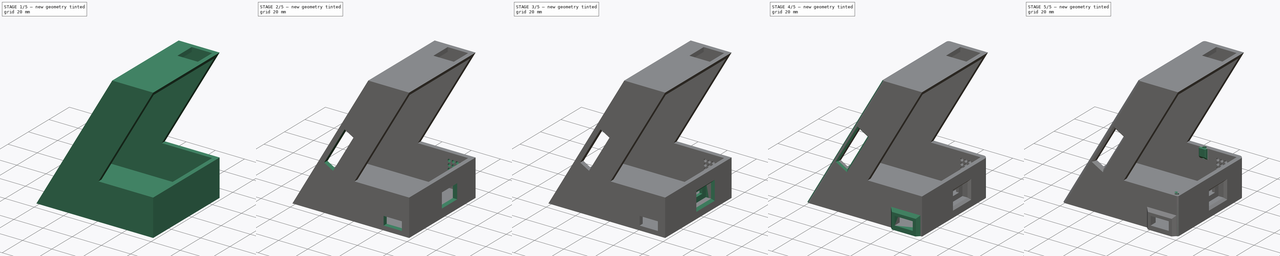
[diagram: build sequence overview — one tinted view per stage of 5, left to right]
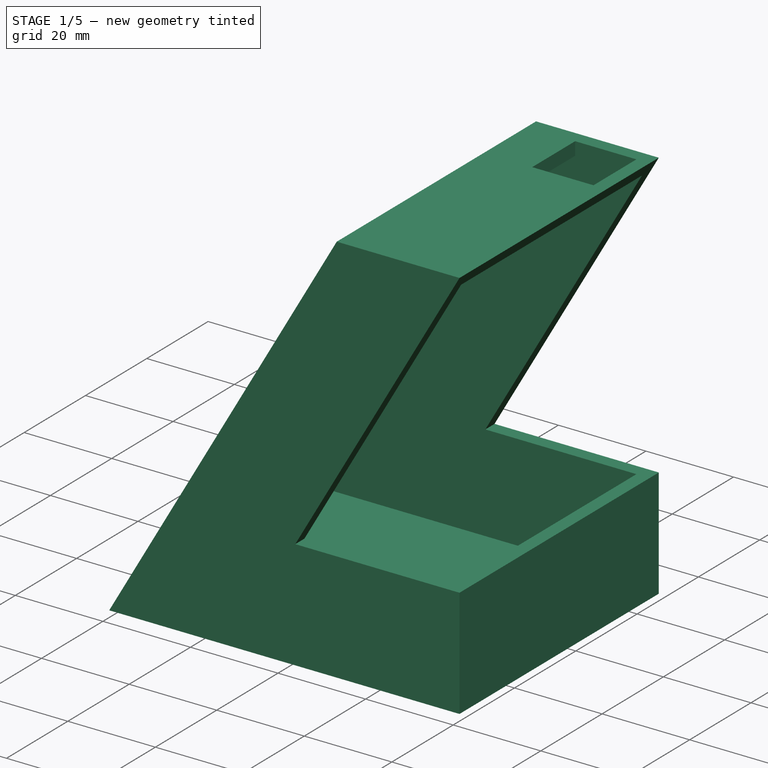
[diagram: stage 1 of 5 — iso view after this stage's code; geometry added in this stage tinted green]
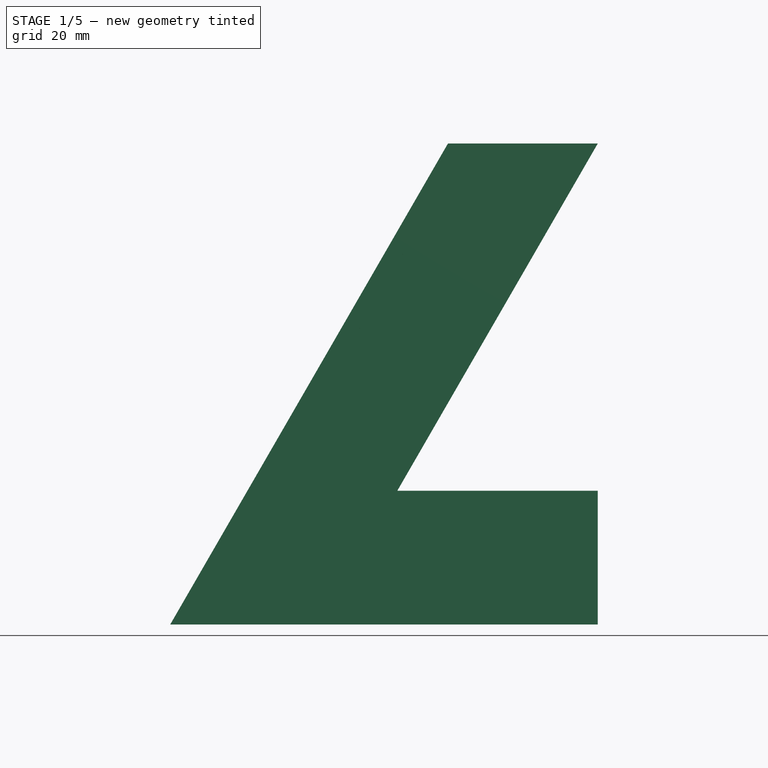
[diagram: stage 1 of 5 — front view after this stage's code; geometry added in this stage tinted green]
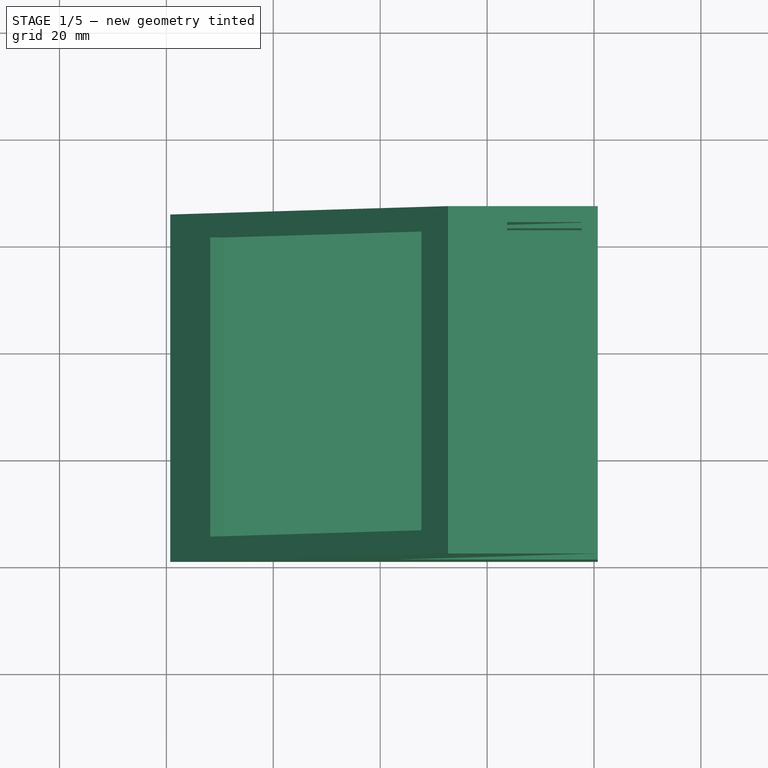
[diagram: stage 1 of 5 — top view after this stage's code; geometry added in this stage tinted green]
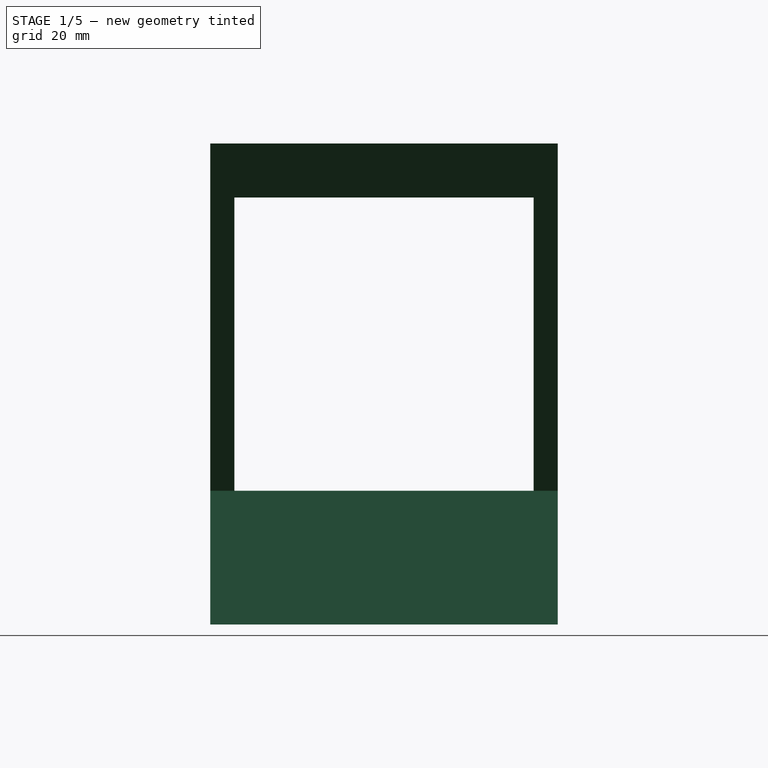
[diagram: stage 1 of 5 — right view after this stage's code; geometry added in this stage tinted green]
FCSTD DOCUMENT  (FreeCAD 1.0R39109 (Git))
Label: Photoframe
License: All rights reserved
LicenseURL: https://en.wikipedia.org/wiki/All_rights_reserved
objects: Sketcher::SketchObject×14, PartDesign::Pocket×9, PartDesign::Chamfer×6, PartDesign::Pad×5, PartDesign::Fillet×4, PartDesign::LinearPattern×2, PartDesign::Thickness×1, PartDesign::MultiTransform×1, PartDesign::Body×1, App::Part×1
note: 110 computed .brp shape members not serialized (recipe doc carries the construction recipe); baked Part::Feature solids carry a one-line shape summary decoded from their .brp

FEATURE [Sketcher::SketchObject] Sketch
  ArcFitTolerance = 1e-06
  AttachmentSupport = -> [XY_Plane]
  FullyConstrained = false
  MakeInternals = false
  MapMode = 5
  sketch-geometry (4):
    g0: LineSegment StartX=-19.2875 StartY=26.0553 StartZ=0 EndX=-19.2875 EndY=-38.9447 EndZ=0
    g1: LineSegment StartX=-19.2875 StartY=-38.9447 StartZ=0 EndX=60.7125 EndY=-38.9447 EndZ=0
    g2: LineSegment StartX=60.7125 StartY=-38.9447 StartZ=0 EndX=60.7125 EndY=26.0553 EndZ=0
    g3: LineSegment StartX=60.7125 StartY=26.0553 StartZ=0 EndX=-19.2875 EndY=26.0553 EndZ=0
  constraints (10):
    c: Coincident(g0,g1)
    c: Coincident(g1,g2)
    c: Coincident(g2,g3)
    c: Coincident(g3,g0)
    c: Vertical(g0)
    c: Vertical(g2)
    c: Horizontal(g1)
    c: Horizontal(g3)
    c: Distance(g0,g2) = 80
    c: Distance(g1,g3) = 65
FEATURE [PartDesign::Pad] Pad
  Direction = (0,0,1)
  Length = 90
  Length2 = 10
  Profile = -> Sketch
  ReferenceAxis = -> Sketch [N_Axis]
  Refine = true
  Suppressed = false
  Type = 0
FEATURE [Sketcher::SketchObject] Sketch001
  ArcFitTolerance = 1e-06
  AttachmentSupport = -> [Pad]
  ExternalGeometry = -> [Pad]
  FullyConstrained = false
  MakeInternals = false
  MapMode = 5
  Placement = pos=(0,-38.9447,0) rot=(1,0,0;1.5708rad)
  sketch-geometry (6):
    g0: LineSegment StartX=-19.2875 StartY=0 StartZ=0 EndX=32.6822 EndY=90 EndZ=0
    g1: LineSegment StartX=60.7125 StartY=90 StartZ=0 EndX=23.1962 EndY=25.0198 EndZ=0
    g2: LineSegment StartX=32.6822 StartY=90 StartZ=0 EndX=-19.2875 EndY=90 EndZ=0
    g3: LineSegment StartX=-19.2875 StartY=0 StartZ=0 EndX=-19.2875 EndY=90 EndZ=0
    g4: LineSegment StartX=23.1962 StartY=25.0198 StartZ=0 EndX=60.7125 EndY=25.0198 EndZ=0
    g5: LineSegment StartX=60.7125 StartY=90 StartZ=0 EndX=60.7125 EndY=25.0198 EndZ=0
  constraints (13):
    c: Coincident(g0,g-6)
    c: PointOnObject(g0,g-3)
    c: Angle(g-1,g1) = -2.0944
    c: Coincident(g2,g0)
    c: Coincident(g2,g-5)
    c: Coincident(g3,g0)
    c: Coincident(g3,g2)
    c: Horizontal(g4)
    c: Coincident(g4,g1)
    c: PointOnObject(g4,g-4)
    c: Coincident(g5,g1)
    c: Coincident(g5,g4)
    c: Vertical(g5)
FEATURE [PartDesign::Pocket] Pocket
  BaseFeature = -> Pad
  Direction = (0,1,-2e-16)
  Length = 65
  Length2 = 5
  Profile = -> Sketch001
  ReferenceAxis = -> Sketch001 [N_Axis]
  Refine = true
  Suppressed = false
  Type = 0
FEATURE [PartDesign::Thickness] Thickness
  Base = -> Pocket [Face8,Face7]
  BaseFeature = -> Pocket
  Intersection = false
  Join = 0
  Mode = 0
  Refine = true
  Reversed = true
  SupportTransform = false
  Suppressed = false
  Value = 3
FEATURE [Sketcher::SketchObject] Sketch002
  ArcFitTolerance = 1e-06
  ExternalGeometry = -> [Pocket,Thickness]
  FullyConstrained = true
  MakeInternals = false
  MapMode = 5
  Placement = pos=(-14.4645,1.9e-15,8.3524) rot=(0.447192,-0.447192,-0.774621;1.82345rad)
  sketch-geometry (4):
    g0: LineSegment StartX=-21.5553 StartY=84.3551 StartZ=0 EndX=-21.5553 EndY=5.3551 EndZ=0
    g1: LineSegment StartX=-21.5553 StartY=5.3551 StartZ=0 EndX=34.4447 EndY=5.3551 EndZ=0
    g2: LineSegment StartX=34.4447 StartY=5.3551 StartZ=0 EndX=34.4447 EndY=84.3551 EndZ=0
    g3: LineSegment StartX=34.4447 StartY=84.3551 StartZ=0 EndX=-21.5553 EndY=84.3551 EndZ=0
  constraints (12):
    c: Coincident(g0,g1)
    c: Coincident(g1,g2)
    c: Coincident(g2,g3)
    c: Coincident(g3,g0)
    c: Vertical(g0)
    c: Vertical(g2)
    c: Horizontal(g1)
    c: Horizontal(g3)
    c: Distance(g0,g2) = 56
    c: Distance(g1,g3) = 79
    c: Distance(g-4,g0) = 4.5
    c: Distance(g-3,g1) = 15
FEATURE [PartDesign::Pocket] Pocket001
  BaseFeature = -> Thickness
  Direction = (0.865991,1e-16,-0.500059)
  Length = 5
  Length2 = 5
  Profile = -> Sketch002
  ReferenceAxis = -> Sketch002 [N_Axis]
  Refine = true
  Suppressed = false
  Type = 0
FEATURE [Sketcher::SketchObject] Sketch003
  ArcFitTolerance = 1e-06
  AttachmentSupport = -> [Pocket001]
  ExternalGeometry = -> [Pocket001]
  FullyConstrained = true
  MakeInternals = false
  MapMode = 5
  Placement = pos=(0,0,90) rot=(0,0,1;0rad)
  sketch-geometry (4):
    g0: LineSegment StartX=43.7125 StartY=23.0553 StartZ=0 EndX=43.7125 EndY=9.05531 EndZ=0
    g1: LineSegment StartX=43.7125 StartY=9.05531 StartZ=0 EndX=57.7125 EndY=9.05531 EndZ=0
    g2: LineSegment StartX=57.7125 StartY=9.05531 StartZ=0 EndX=57.7125 EndY=23.0553 EndZ=0
    g3: LineSegment StartX=57.7125 StartY=23.0553 StartZ=0 EndX=43.7125 EndY=23.0553 EndZ=0
  constraints (12):
    c: Coincident(g0,g1)
    c: Coincident(g1,g2)
    c: Coincident(g2,g3)
    c: Coincident(g3,g0)
    c: Vertical(g0)
    c: Vertical(g2)
    c: Horizontal(g1)
    c: Horizontal(g3)
    c: Distance(g0,g2) = 14
    c: Distance(g1,g3) = 14
    c: Distance(g-4,g2) = 3
    c: Distance(g-3,g3) = 3
FEATURE [PartDesign::Pocket] Pocket002
  BaseFeature = -> Pocket001
  Direction = (0,0,-1)
  Length = 5
  Length2 = 5
  Profile = -> Sketch003
  ReferenceAxis = -> Sketch003 [N_Axis]
  Refine = true
  Suppressed = false
  Type = 0
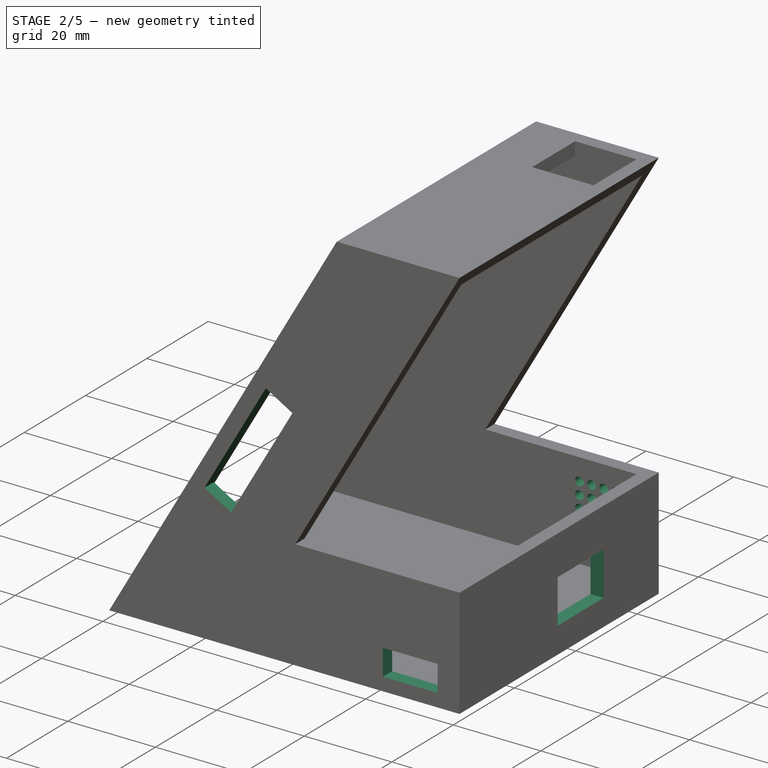
[diagram: stage 2 of 5 — iso view after this stage's code; geometry added in this stage tinted green]
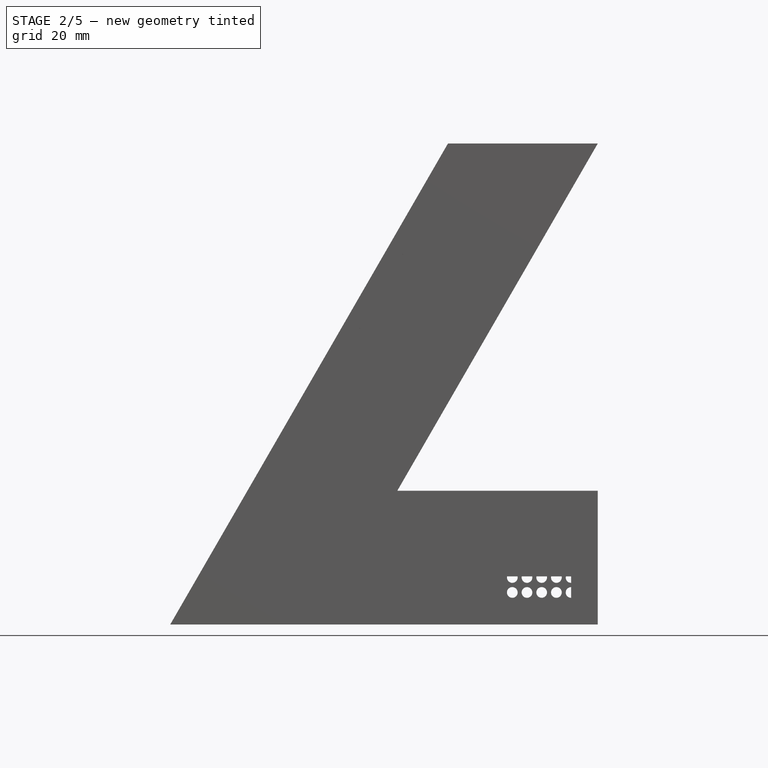
[diagram: stage 2 of 5 — front view after this stage's code; geometry added in this stage tinted green]
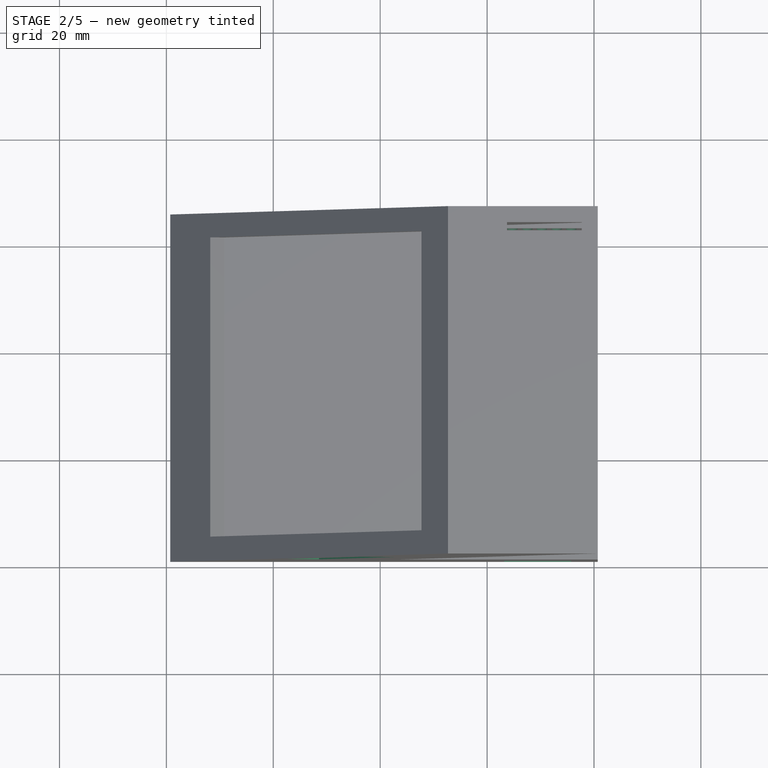
[diagram: stage 2 of 5 — top view after this stage's code; geometry added in this stage tinted green]
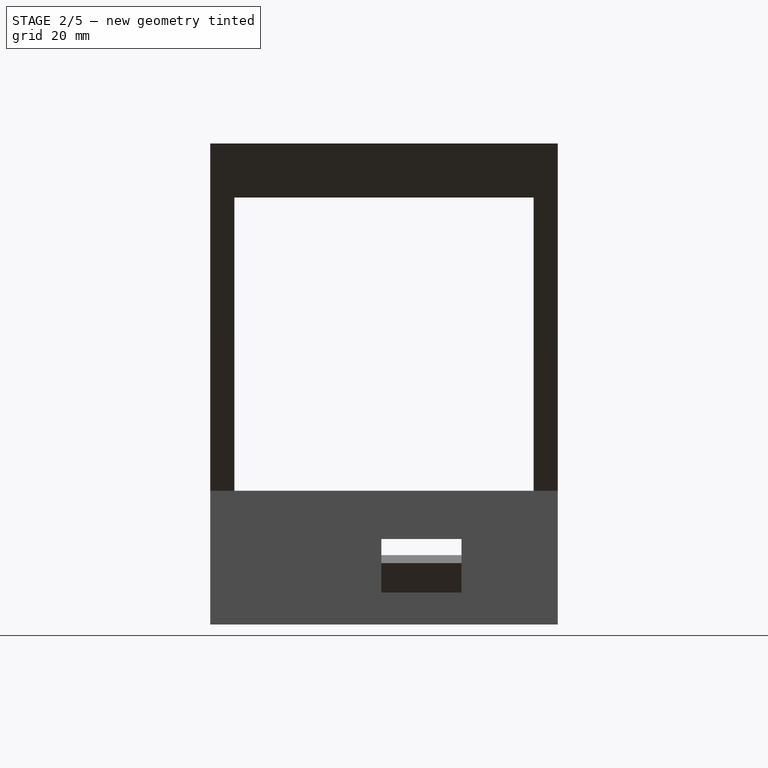
[diagram: stage 2 of 5 — right view after this stage's code; geometry added in this stage tinted green]
FEATURE [Sketcher::SketchObject] Sketch004
  ArcFitTolerance = 1e-06
  AttachmentSupport = -> [Pocket002]
  ExternalGeometry = -> [Pocket002]
  FullyConstrained = true
  MakeInternals = false
  MapMode = 5
  Placement = pos=(0,-38.9447,0) rot=(1,0,0;1.5708rad)
  sketch-geometry (4):
    g0: LineSegment StartX=16.4838 StartY=55.3937 StartZ=0 EndX=2.48382 EndY=31.145 EndZ=0
    g1: LineSegment StartX=2.48382 StartY=31.145 StartZ=0 EndX=8.546 EndY=27.645 EndZ=0
    g2: LineSegment StartX=16.4838 StartY=55.3937 StartZ=0 EndX=22.546 EndY=51.8937 EndZ=0
    g3: LineSegment StartX=8.546 StartY=27.645 StartZ=0 EndX=22.546 EndY=51.8937 EndZ=0
  constraints (12):
    c: Angle(g-1,g0) = -2.0944
    c: Distance(g0,g0) = 28
    c: Distance(g-5,g0) = 21
    c: Distance(g1) = 7
    c: Angle(g-1,g1) = -0.523599
    c: Coincident(g1,g0)
    c: Distance(g2) = 7
    c: Angle(g-1,g2) = -0.523599
    c: Coincident(g2,g0)
    c: Coincident(g3,g1)
    c: Coincident(g3,g2)
    c: Distance(g-4,g0) = 38
FEATURE [PartDesign::Pocket] Pocket003
  BaseFeature = -> Pocket002
  Direction = (0,1,-2e-16)
  Length = 5
  Length2 = 5
  Profile = -> Sketch004
  ReferenceAxis = -> Sketch004 [N_Axis]
  Refine = true
  Suppressed = false
  Type = 0
FEATURE [Sketcher::SketchObject] Sketch005
  ArcFitTolerance = 1e-06
  AttachmentSupport = -> [Pocket002]
  ExternalGeometry = -> [Pocket002]
  FullyConstrained = true
  MakeInternals = false
  MapMode = 5
  Placement = pos=(0,26.0553,0) rot=(0,0.707107,0.707107;3.14159rad)
  sketch-geometry (5):
    g0: LineSegment [constr] StartX=-57.7125 StartY=22 StartZ=0 EndX=-57.7125 EndY=6 EndZ=0
    g1: LineSegment [constr] StartX=-57.7125 StartY=6 StartZ=0 EndX=-44.7125 EndY=6 EndZ=0
    g2: LineSegment [constr] StartX=-44.7125 StartY=6 StartZ=0 EndX=-44.7125 EndY=22 EndZ=0
    g3: LineSegment [constr] StartX=-44.7125 StartY=22 StartZ=0 EndX=-57.7125 EndY=22 EndZ=0
    g4: Circle CenterX=-55.7125 CenterY=20 CenterZ=0 NormalX=0 NormalY=0 NormalZ=1 AngleXU=0 Radius=1
  constraints (15):
    c: Coincident(g0,g1)
    c: Coincident(g1,g2)
    c: Coincident(g2,g3)
    c: Coincident(g3,g0)
    c: Vertical(g0)
    c: Vertical(g2)
    c: Horizontal(g1)
    c: Horizontal(g3)
    c: Distance(g0,g2) = 13
    c: Distance(g1,g3) = 16
    c: Distance(g-3,g0) = 3
    c: Distance(g-4,g1) = 6
    c: Diameter(g4) = 2
    c: Distance(g4,g3) = 2
    c: Distance(g4,g0) = 2
FEATURE [PartDesign::Pocket] Pocket004
  BaseFeature = -> Pocket003
  Direction = (0,-1,2e-16)
  Length = 5
  Length2 = 5
  Profile = -> Sketch005
  ReferenceAxis = -> Sketch005 [N_Axis]
  Refine = true
  Suppressed = false
  Type = 0
FEATURE [PartDesign::LinearPattern] LinearPattern
  Direction = -> Sketch005 [H_Axis]
  Length = 11
  Mode = 0
  Occurrences = 5
  Offset = 2.75
  Refine = true
  Suppressed = false
  TransformMode = 0
FEATURE [PartDesign::LinearPattern] LinearPattern001
  Direction = -> Sketch005 [V_Axis]
  Length = 14
  Mode = 0
  Occurrences = 6
  Offset = 2.8
  Refine = true
  Reversed = true
  Suppressed = false
  TransformMode = 0
FEATURE [PartDesign::MultiTransform] MultiTransform
  BaseFeature = -> Pocket004
  Originals = -> [Pocket004]
  Refine = true
  Suppressed = false
  TransformMode = 0
  Transformations = -> [LinearPattern,LinearPattern001]
FEATURE [Sketcher::SketchObject] Sketch006
  ArcFitTolerance = 1e-06
  AttachmentSupport = -> [MultiTransform]
  ExternalGeometry = -> [MultiTransform]
  FullyConstrained = true
  MakeInternals = false
  MapMode = 5
  Placement = pos=(60.7125,0,0) rot=(0.57735,0.57735,0.57735;2.0944rad)
  sketch-geometry (4):
    g0: LineSegment StartX=-6.94469 StartY=16 StartZ=0 EndX=-6.94469 EndY=6 EndZ=0
    g1: LineSegment StartX=-6.94469 StartY=6 StartZ=0 EndX=8.05531 EndY=6 EndZ=0
    g2: LineSegment StartX=8.05531 StartY=6 StartZ=0 EndX=8.05531 EndY=16 EndZ=0
    g3: LineSegment StartX=8.05531 StartY=16 StartZ=0 EndX=-6.94469 EndY=16 EndZ=0
  constraints (12):
    c: Coincident(g0,g1)
    c: Coincident(g1,g2)
    c: Coincident(g2,g3)
    c: Coincident(g3,g0)
    c: Vertical(g0)
    c: Vertical(g2)
    c: Horizontal(g1)
    c: Horizontal(g3)
    c: Distance(g-3,g2) = 18
    c: Distance(g-4,g0) = 32
    c: Distance(g-6,g1) = 6
    c: Distance(g1,g3) = 10
FEATURE [PartDesign::Pocket] Pocket005
  BaseFeature = -> MultiTransform
  Direction = (-1,0,0)
  Length = 5
  Length2 = 5
  Profile = -> Sketch006
  ReferenceAxis = -> Sketch006 [N_Axis]
  Refine = true
  Suppressed = false
  Type = 0
FEATURE [Sketcher::SketchObject] Sketch007
  ArcFitTolerance = 1e-06
  AttachmentSupport = -> [Pocket005]
  ExternalGeometry = -> [Pocket005]
  FullyConstrained = true
  MakeInternals = false
  MapMode = 5
  Placement = pos=(0,-38.9447,0) rot=(1,0,0;1.5708rad)
  sketch-geometry (4):
    g0: LineSegment StartX=43.2125 StartY=9 StartZ=0 EndX=43.2125 EndY=3 EndZ=0
    g1: LineSegment StartX=43.2125 StartY=3 StartZ=0 EndX=55.7125 EndY=3 EndZ=0
    g2: LineSegment StartX=55.7125 StartY=3 StartZ=0 EndX=55.7125 EndY=9 EndZ=0
    g3: LineSegment StartX=55.7125 StartY=9 StartZ=0 EndX=43.2125 EndY=9 EndZ=0
  constraints (12):
    c: Coincident(g0,g1)
    c: Coincident(g1,g2)
    c: Coincident(g2,g3)
    c: Coincident(g3,g0)
    c: Vertical(g0)
    c: Vertical(g2)
    c: Horizontal(g1)
    c: Horizontal(g3)
    c: Distance(g0,g2) = 12.5
    c: Distance(g1,g3) = 6
    c: Distance(g-3,g1) = 3
    c: Distance(g-4,g2) = 5
FEATURE [PartDesign::Pocket] Pocket006
  BaseFeature = -> Pocket005
  Direction = (0,1,-2e-16)
  Length = 5
  Length2 = 5
  Profile = -> Sketch007
  ReferenceAxis = -> Sketch007 [N_Axis]
  Refine = true
  Suppressed = false
  Type = 0
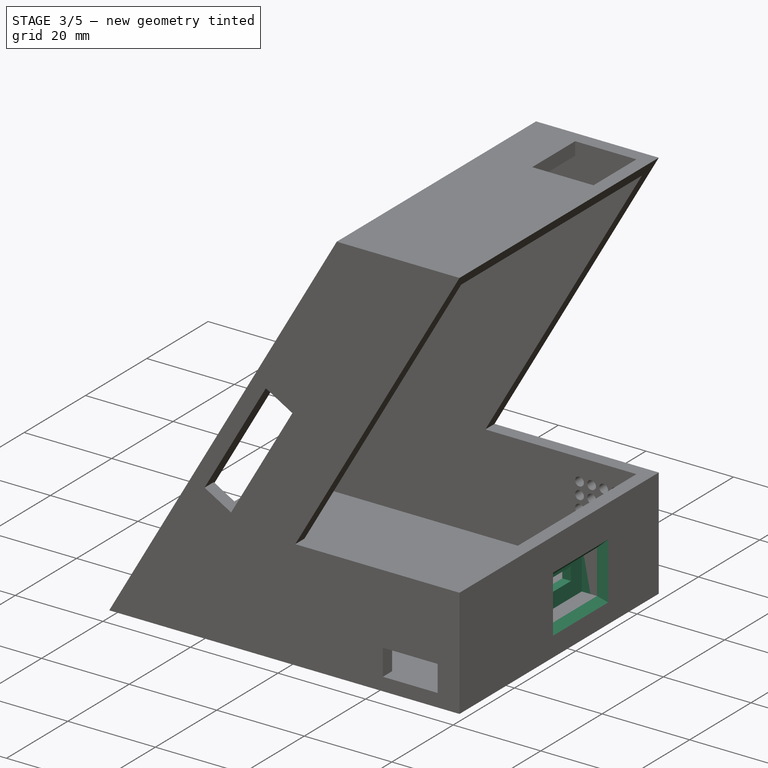
[diagram: stage 3 of 5 — iso view after this stage's code; geometry added in this stage tinted green]
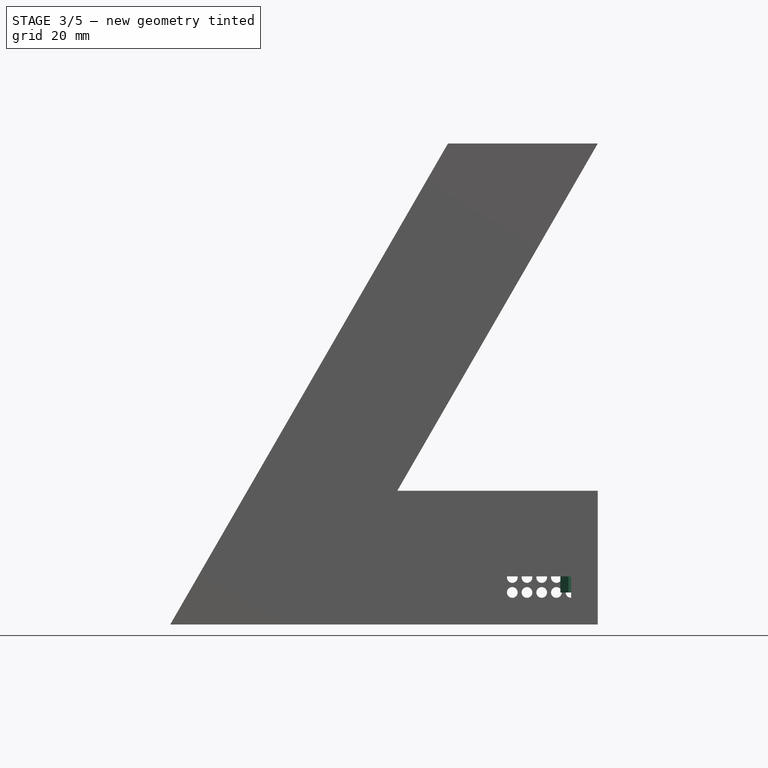
[diagram: stage 3 of 5 — front view after this stage's code; geometry added in this stage tinted green]
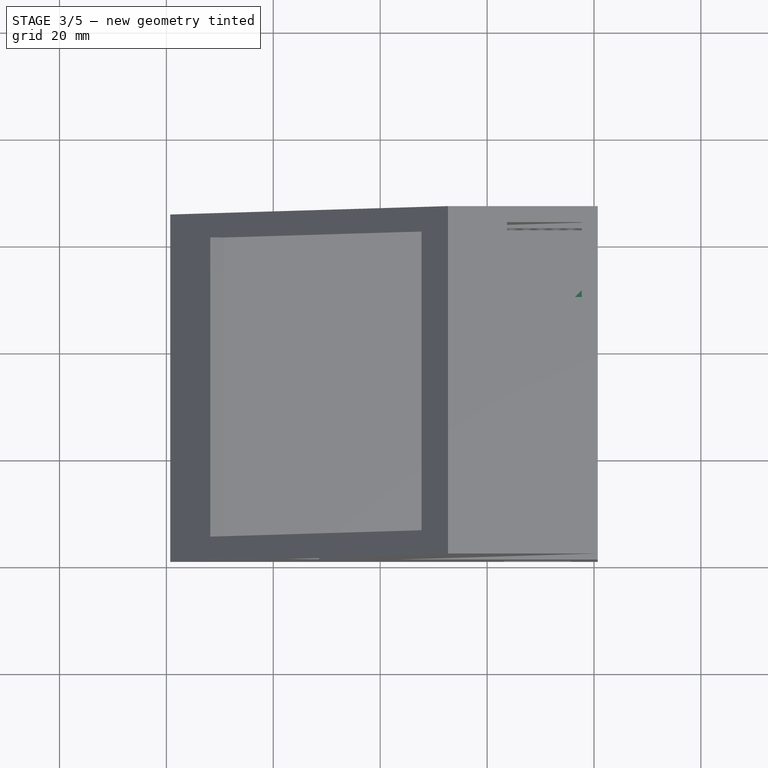
[diagram: stage 3 of 5 — top view after this stage's code; geometry added in this stage tinted green]
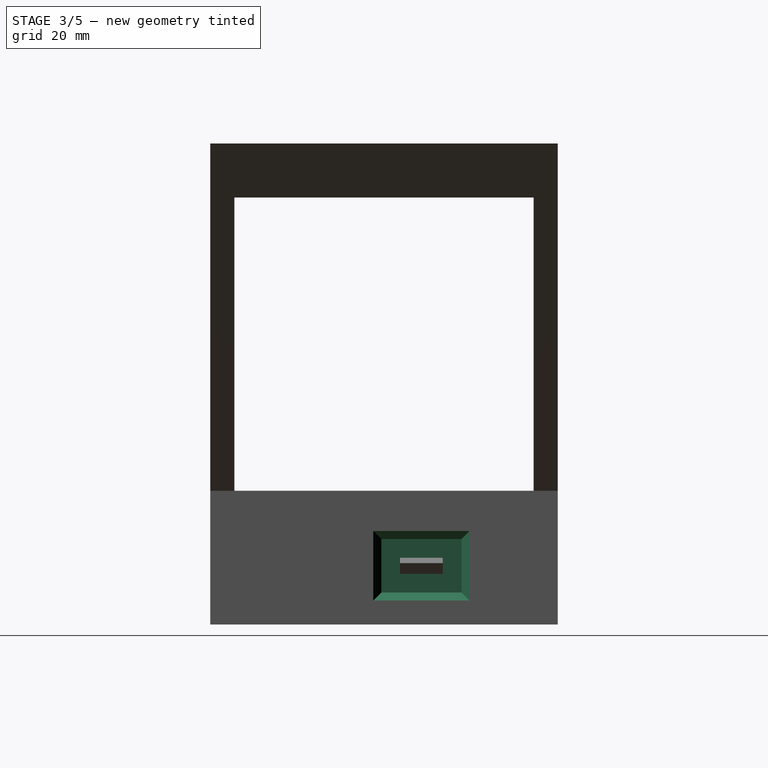
[diagram: stage 3 of 5 — right view after this stage's code; geometry added in this stage tinted green]
FEATURE [Sketcher::SketchObject] Sketch008
  ArcFitTolerance = 1e-06
  AttachmentSupport = -> [Pocket006]
  ExternalGeometry = -> [Pocket006]
  FullyConstrained = false
  MakeInternals = false
  MapMode = 5
  Placement = pos=(57.7125,0,0) rot=(0.57735,-0.57735,-0.57735;2.0944rad)
  sketch-geometry (8):
    g0: LineSegment StartX=-10.0553 StartY=18 StartZ=0 EndX=-10.0553 EndY=6 EndZ=0
    g1: LineSegment StartX=8.94469 StartY=6 StartZ=0 EndX=8.94469 EndY=18 EndZ=0
    g2: LineSegment StartX=8.94469 StartY=18 StartZ=0 EndX=-10.0553 EndY=18 EndZ=0
    g3: LineSegment StartX=-10.0553 StartY=6 StartZ=0 EndX=-8.05531 EndY=6 EndZ=0
    g4: LineSegment StartX=-8.05531 StartY=6 StartZ=0 EndX=-8.05531 EndY=16 EndZ=0
    g5: LineSegment StartX=-8.05531 StartY=16 StartZ=0 EndX=6.94469 EndY=16 EndZ=0
    g6: LineSegment StartX=6.94469 StartY=16 StartZ=0 EndX=6.94469 EndY=6 EndZ=0
    g7: LineSegment StartX=6.94469 StartY=6 StartZ=0 EndX=8.94469 EndY=6 EndZ=0
  constraints (20):
    c: Coincident(g1,g2)
    c: Coincident(g2,g0)
    c: Vertical(g0)
    c: Vertical(g1)
    c: Horizontal(g2)
    c: Distance(g0,g-5) = 2
    c: Distance(g2,g-7) = 2
    c: Distance(g1,g-6) = 2
    c: PointOnObject(g3,g0)
    c: Coincident(g3,g-5)
    c: Horizontal(g3)
    c: Coincident(g4,g3)
    c: Coincident(g4,g-7)
    c: Coincident(g5,g4)
    c: Coincident(g5,g-7)
    c: Coincident(g6,g5)
    c: Coincident(g6,g-6)
    c: Coincident(g7,g6)
    c: Coincident(g7,g1)
    c: Horizontal(g7)
FEATURE [PartDesign::Pad] Pad001
  BaseFeature = -> Pocket006
  Direction = (-1,0,0)
  Length = 4
  Length2 = 10
  Profile = -> Sketch008
  ReferenceAxis = -> Sketch008 [N_Axis]
  Refine = true
  Suppressed = false
  Type = 0
FEATURE [Sketcher::SketchObject] Sketch009
  ArcFitTolerance = 1e-06
  AttachmentSupport = -> [Pad001]
  ExternalGeometry = -> [Pad001]
  FullyConstrained = true
  MakeInternals = false
  MapMode = 5
  Placement = pos=(53.7125,0,0) rot=(0.57735,-0.57735,-0.57735;2.0944rad)
  sketch-geometry (4):
    g0: LineSegment StartX=-8.05531 StartY=16 StartZ=0 EndX=-8.05531 EndY=6 EndZ=0
    g1: LineSegment StartX=-8.05531 StartY=6 StartZ=0 EndX=6.94469 EndY=6 EndZ=0
    g2: LineSegment StartX=6.94469 StartY=6 StartZ=0 EndX=6.94469 EndY=16 EndZ=0
    g3: LineSegment StartX=6.94469 StartY=16 StartZ=0 EndX=-8.05531 EndY=16 EndZ=0
  constraints (10):
    c: Coincident(g0,g1)
    c: Coincident(g1,g2)
    c: Coincident(g2,g3)
    c: Coincident(g3,g0)
    c: Vertical(g0)
    c: Vertical(g2)
    c: Horizontal(g1)
    c: Horizontal(g3)
    c: Coincident(g0,g-4)
    c: Coincident(g1,g-5)
FEATURE [PartDesign::Pad] Pad002
  BaseFeature = -> Pad001
  Direction = (-1,0,0)
  Length = 2
  Length2 = 10
  Profile = -> Sketch009
  ReferenceAxis = -> Sketch009 [N_Axis]
  Refine = true
  Reversed = true
  Suppressed = false
  Type = 0
FEATURE [Sketcher::SketchObject] Sketch010
  ArcFitTolerance = 1e-06
  AttachmentSupport = -> [Pad002]
  ExternalGeometry = -> [Pad002]
  FullyConstrained = true
  MakeInternals = false
  MapMode = 5
  Placement = pos=(55.7125,0,0) rot=(0.57735,0.57735,0.57735;2.0944rad)
  sketch-geometry (4):
    g0: LineSegment StartX=-3.44469 StartY=12.5 StartZ=0 EndX=-3.44469 EndY=9.5 EndZ=0
    g1: LineSegment StartX=-3.44469 StartY=9.5 StartZ=0 EndX=4.55531 EndY=9.5 EndZ=0
    g2: LineSegment StartX=4.55531 StartY=9.5 StartZ=0 EndX=4.55531 EndY=12.5 EndZ=0
    g3: LineSegment StartX=4.55531 StartY=12.5 StartZ=0 EndX=-3.44469 EndY=12.5 EndZ=0
  constraints (12):
    c: Coincident(g0,g1)
    c: Coincident(g1,g2)
    c: Coincident(g2,g3)
    c: Coincident(g3,g0)
    c: Vertical(g0)
    c: Vertical(g2)
    c: Horizontal(g1)
    c: Horizontal(g3)
    c: Distance(g0,g2) = 8
    c: Distance(g1,g3) = 3
    c: Distance(g-6,g1) = 3.5
    c: Distance(g-4,g2) = 3.5
FEATURE [PartDesign::Pocket] Pocket007
  BaseFeature = -> Pad002
  Direction = (-1,0,0)
  Length = 5
  Length2 = 5
  Profile = -> Sketch010
  ReferenceAxis = -> Sketch010 [N_Axis]
  Refine = true
  Suppressed = false
  Type = 0
FEATURE [PartDesign::Chamfer] Chamfer
  Angle = 45
  Base = -> Pocket007 [Edge26,Edge29,Edge27,Edge28]
  BaseFeature = -> Pocket007
  ChamferType = 0
  FlipDirection = false
  Refine = true
  Size = 1.5
  Size2 = 1
  SupportTransform = false
  Suppressed = false
  UseAllEdges = false
FEATURE [PartDesign::Chamfer] Chamfer001
  Angle = 45
  Base = -> Chamfer [Edge180,Edge179,Edge181]
  BaseFeature = -> Chamfer
  ChamferType = 0
  FlipDirection = false
  Refine = true
  Size = 1.5
  Size2 = 1
  SupportTransform = false
  Suppressed = false
  UseAllEdges = false
FEATURE [PartDesign::Chamfer] Chamfer002
  Angle = 45
  Base = -> Chamfer001 [Edge91,Edge93,Edge92]
  BaseFeature = -> Chamfer001
  ChamferType = 0
  FlipDirection = false
  Refine = true
  Size = 1.5
  Size2 = 1
  SupportTransform = false
  Suppressed = false
  UseAllEdges = false
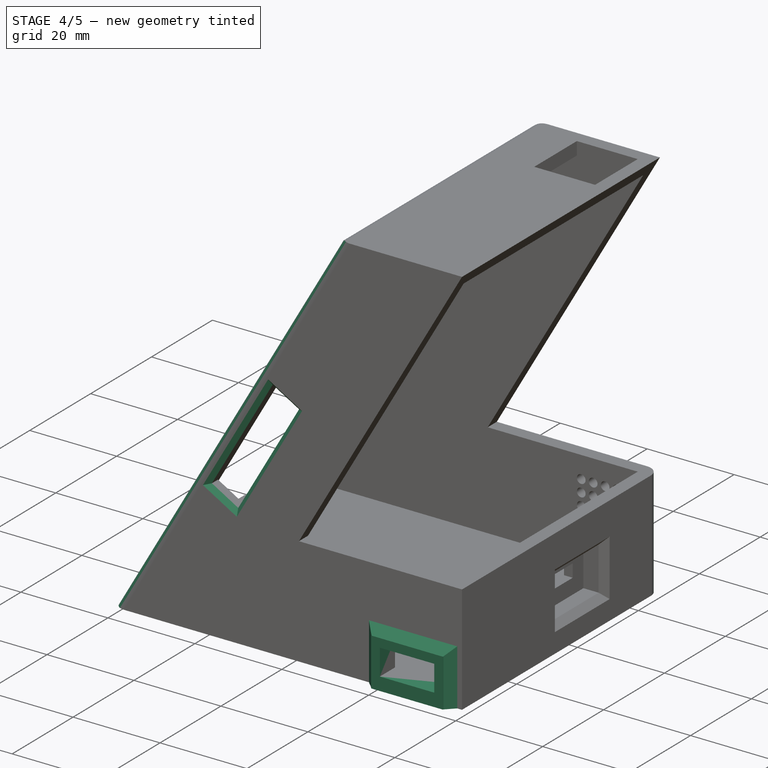
[diagram: stage 4 of 5 — iso view after this stage's code; geometry added in this stage tinted green]
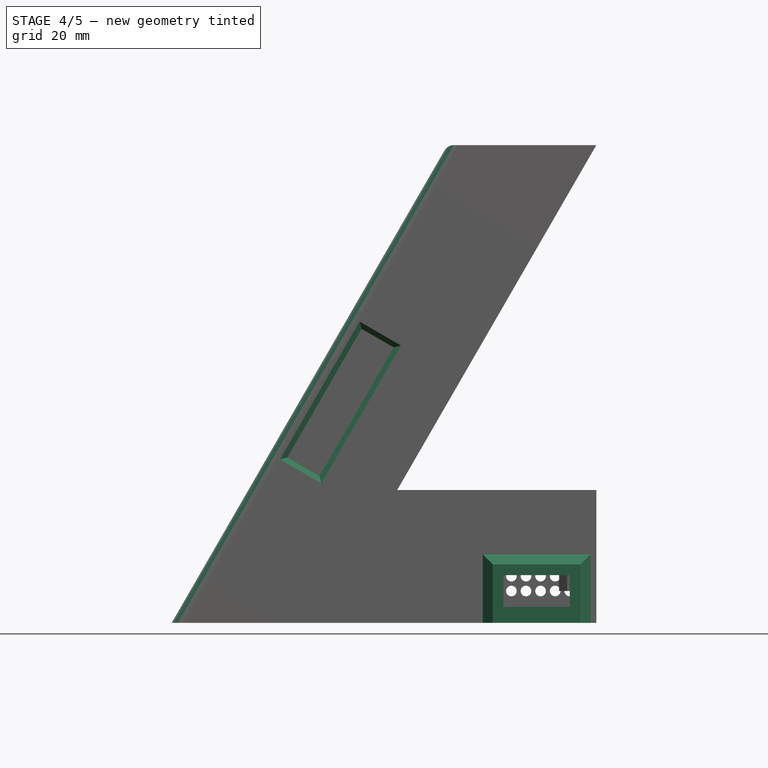
[diagram: stage 4 of 5 — front view after this stage's code; geometry added in this stage tinted green]
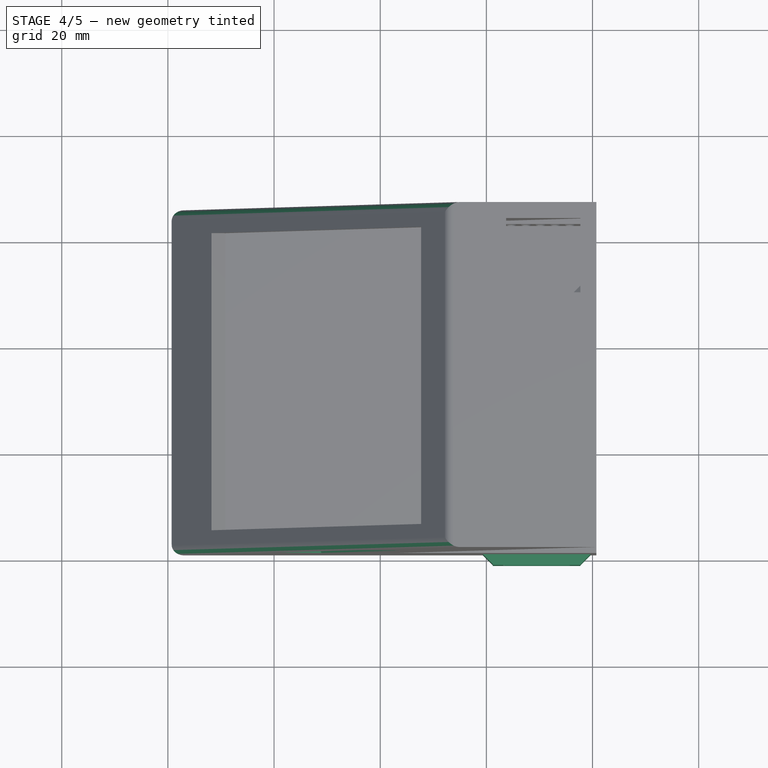
[diagram: stage 4 of 5 — top view after this stage's code; geometry added in this stage tinted green]
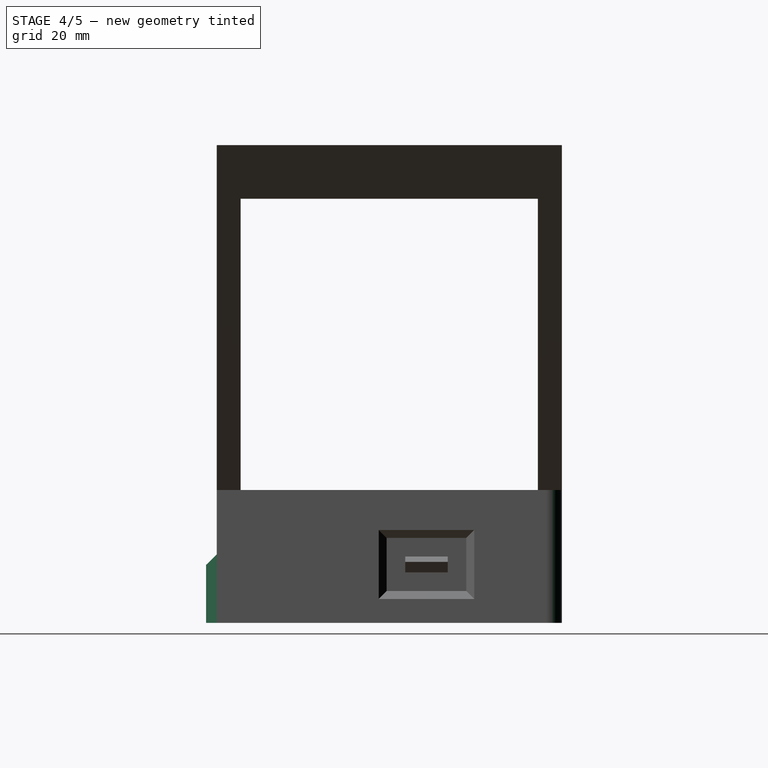
[diagram: stage 4 of 5 — right view after this stage's code; geometry added in this stage tinted green]
FEATURE [Sketcher::SketchObject] Sketch011
  ArcFitTolerance = 1e-06
  AttachmentSupport = -> [Chamfer002]
  ExternalGeometry = -> [Chamfer002]
  FullyConstrained = true
  MakeInternals = false
  MapMode = 5
  Placement = pos=(0,-38.9447,0) rot=(1,0,0;1.5708rad)
  sketch-geometry (8):
    g0: LineSegment StartX=41.2125 StartY=11 StartZ=0 EndX=41.2125 EndY=0 EndZ=0
    g1: LineSegment StartX=41.2125 StartY=0 StartZ=0 EndX=57.7125 EndY=0 EndZ=0
    g2: LineSegment StartX=57.7125 StartY=0 StartZ=0 EndX=57.7125 EndY=11 EndZ=0
    g3: LineSegment StartX=57.7125 StartY=11 StartZ=0 EndX=41.2125 EndY=11 EndZ=0
    g4: LineSegment StartX=43.2125 StartY=9 StartZ=0 EndX=43.2125 EndY=3 EndZ=0
    g5: LineSegment StartX=43.2125 StartY=3 StartZ=0 EndX=55.7125 EndY=3 EndZ=0
    g6: LineSegment StartX=55.7125 StartY=3 StartZ=0 EndX=55.7125 EndY=9 EndZ=0
    g7: LineSegment StartX=55.7125 StartY=9 StartZ=0 EndX=43.2125 EndY=9 EndZ=0
  constraints (22):
    c: Coincident(g0,g1)
    c: Coincident(g1,g2)
    c: Coincident(g2,g3)
    c: Coincident(g3,g0)
    c: Vertical(g0)
    c: Vertical(g2)
    c: Horizontal(g1)
    c: Horizontal(g3)
    c: Distance(g2,g-5) = 2
    c: Distance(g0,g-4) = 2
    c: Distance(g-3,g3) = 2
    c: Distance(g1,g-6) = 3
    c: Coincident(g4,g5)
    c: Coincident(g5,g6)
    c: Coincident(g6,g7)
    c: Coincident(g7,g4)
    c: Vertical(g4)
    c: Vertical(g6)
    c: Horizontal(g5)
    c: Horizontal(g7)
    c: Coincident(g4,g-4)
    c: Coincident(g5,g-6)
FEATURE [PartDesign::Pad] Pad003
  BaseFeature = -> Chamfer002
  Direction = (0,-1,2e-16)
  Length = 2
  Length2 = 10
  Profile = -> Sketch011
  ReferenceAxis = -> Sketch011 [N_Axis]
  Refine = true
  Suppressed = false
  Type = 0
FEATURE [PartDesign::Chamfer] Chamfer003
  Angle = 45
  Base = -> Pad003 [Edge167,Edge166,Edge165]
  BaseFeature = -> Pad003
  ChamferType = 0
  FlipDirection = false
  Refine = true
  Size = 1.9
  Size2 = 1
  SupportTransform = false
  Suppressed = false
  UseAllEdges = false
FEATURE [PartDesign::Chamfer] Chamfer004
  Angle = 45
  Base = -> Chamfer003 [Edge11,Edge12,Edge13,Edge14]
  BaseFeature = -> Chamfer003
  ChamferType = 0
  FlipDirection = false
  Refine = true
  Size = 1
  Size2 = 1
  SupportTransform = false
  Suppressed = false
  UseAllEdges = false
FEATURE [PartDesign::Fillet] Fillet
  Base = -> Chamfer004 [Edge33,Edge34,Edge7]
  BaseFeature = -> Chamfer004
  Radius = 2
  Refine = true
  SupportTransform = false
  Suppressed = false
  UseAllEdges = false
FEATURE [PartDesign::Fillet] Fillet001
  Base = -> Fillet [Edge56]
  BaseFeature = -> Fillet
  Radius = 3
  Refine = true
  SupportTransform = false
  Suppressed = false
  UseAllEdges = false
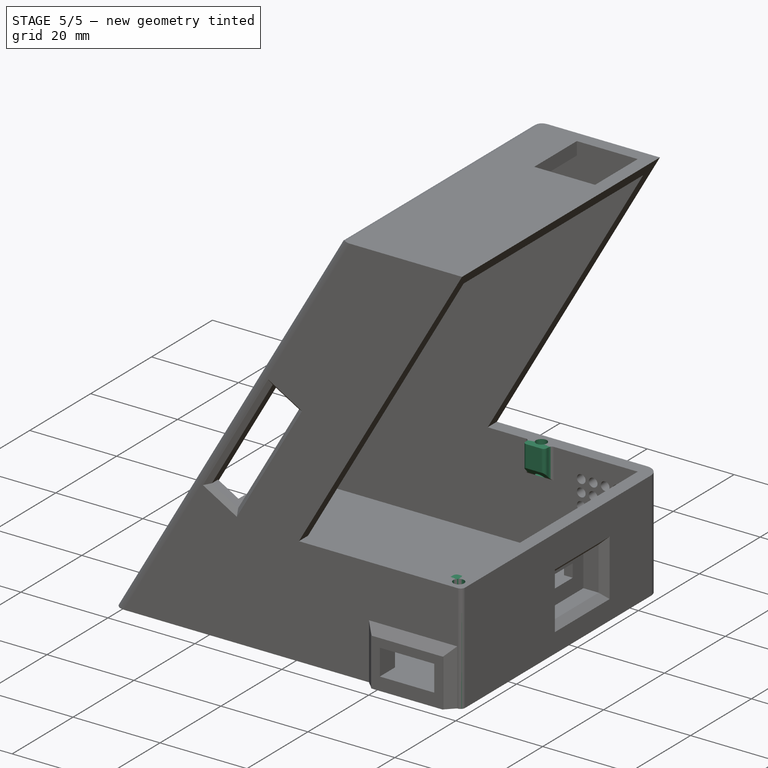
[diagram: stage 5 of 5 — iso view after this stage's code; geometry added in this stage tinted green]
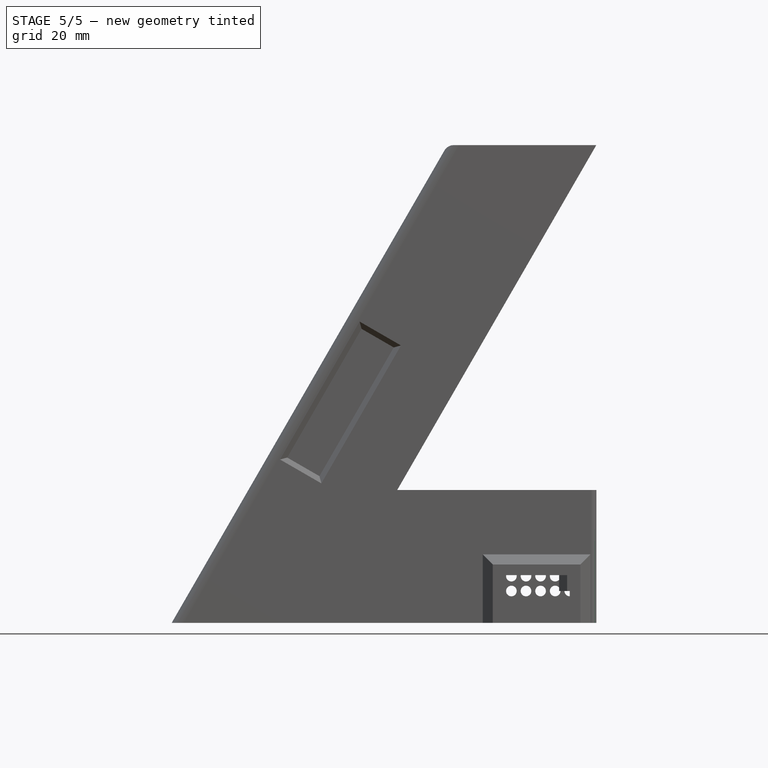
[diagram: stage 5 of 5 — front view after this stage's code; geometry added in this stage tinted green]
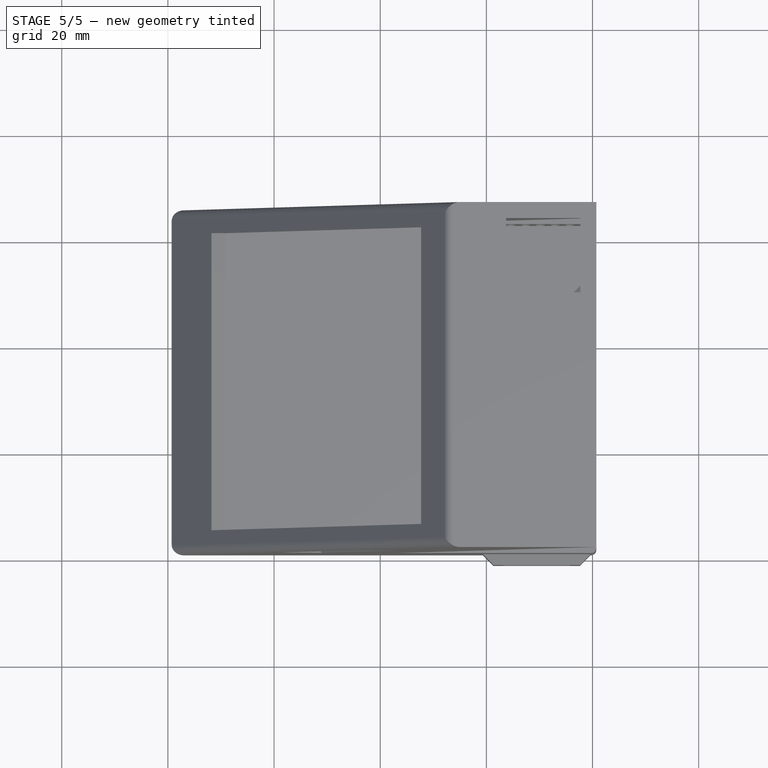
[diagram: stage 5 of 5 — top view after this stage's code; geometry added in this stage tinted green]
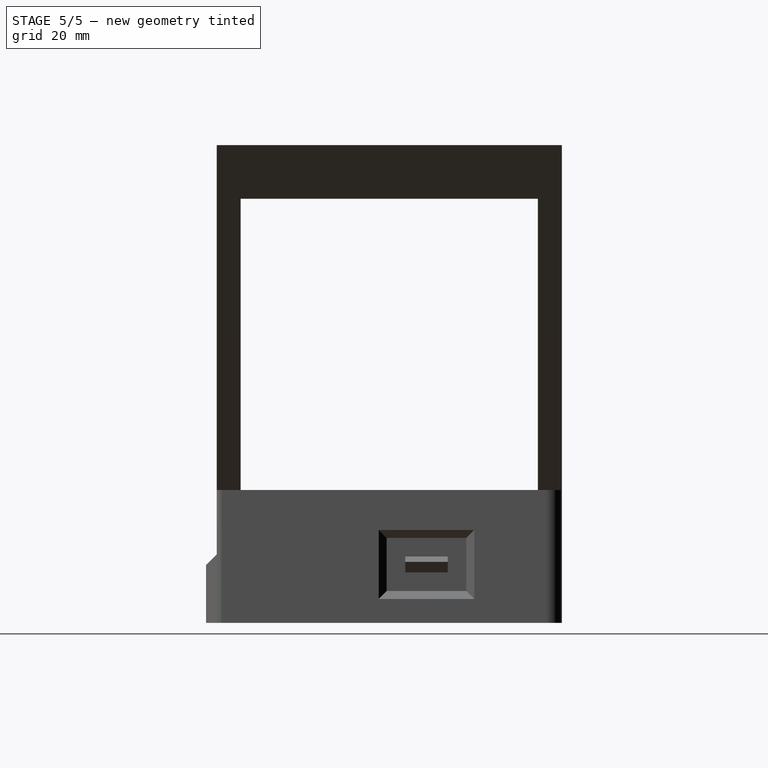
[diagram: stage 5 of 5 — right view after this stage's code; geometry added in this stage tinted green]
FEATURE [PartDesign::Fillet] Fillet002
  Base = -> Fillet001 [Edge54]
  BaseFeature = -> Fillet001
  Radius = 1
  Refine = true
  SupportTransform = false
  Suppressed = false
  UseAllEdges = false
FEATURE [Sketcher::SketchObject] Sketch012
  ArcFitTolerance = 1e-06
  FullyConstrained = true
  MakeInternals = false
  MapMode = 5
  Placement = pos=(0,5.5e-15,25.0198) rot=(0,0,1;0rad)
  sketch-geometry (8):
    g0: LineSegment StartX=57.7125 StartY=-35.9447 StartZ=0 EndX=57.7125 EndY=-33.9447 EndZ=0
    g1: LineSegment StartX=57.7125 StartY=-33.9447 StartZ=0 EndX=55.7125 EndY=-33.9447 EndZ=0
    g2: LineSegment StartX=55.7125 StartY=-33.9447 StartZ=0 EndX=55.7125 EndY=-35.9447 EndZ=0
    g3: LineSegment StartX=55.7125 StartY=-35.9447 StartZ=0 EndX=57.7125 EndY=-35.9447 EndZ=0
    g4: LineSegment StartX=32.7125 StartY=23.0553 StartZ=0 EndX=32.7125 EndY=21.0553 EndZ=0
    g5: LineSegment StartX=32.7125 StartY=21.0553 StartZ=0 EndX=37.7125 EndY=21.0553 EndZ=0
    g6: LineSegment StartX=37.7125 StartY=21.0553 StartZ=0 EndX=37.7125 EndY=23.0553 EndZ=0
    g7: LineSegment StartX=37.7125 StartY=23.0553 StartZ=0 EndX=32.7125 EndY=23.0553 EndZ=0
  constraints (23):
    c: Coincident(g0,g1)
    c: Coincident(g1,g2)
    c: Coincident(g2,g3)
    c: Coincident(g3,g0)
    c: Vertical(g0)
    c: Vertical(g2)
    c: Horizontal(g1)
    c: Horizontal(g3)
    c: Distance(g0,g2) = 2
    c: Distance(g1,g3) = 2
    c: Coincident(g0,g-5)
    c: Coincident(g4,g5)
    c: Coincident(g5,g6)
    c: Coincident(g6,g7)
    c: Coincident(g7,g4)
    c: Vertical(g4)
    c: Vertical(g6)
    c: Horizontal(g5)
    c: Horizontal(g7)
    c: Distance(g4,g6) = 5
    c: Distance(g5,g7) = 2
    c: PointOnObject(g4,g-3)
    c: Distance(g5,g-4) = 20
FEATURE [PartDesign::Pad] Pad004
  BaseFeature = -> Fillet002
  Direction = (0,0,1)
  Length = 5
  Length2 = 10
  Profile = -> Sketch012
  ReferenceAxis = -> Sketch012 [N_Axis]
  Refine = true
  Reversed = true
  Suppressed = false
  Type = 0
FEATURE [PartDesign::Chamfer] Chamfer005
  Angle = 45
  Base = -> Pad004 [Edge217,Edge206]
  BaseFeature = -> Pad004
  ChamferType = 0
  FlipDirection = false
  Refine = true
  Size = 1.99
  Size2 = 1
  SupportTransform = false
  Suppressed = false
  UseAllEdges = false
FEATURE [Sketcher::SketchObject] Sketch013
  ArcFitTolerance = 1e-06
  AttachmentSupport = -> [Chamfer005]
  ExternalGeometry = -> [Chamfer005]
  FullyConstrained = true
  MakeInternals = false
  MapMode = 5
  Placement = pos=(0,0,25.0198) rot=(0,0,1;0rad)
  sketch-geometry (2):
    g0: Circle CenterX=58.2125 CenterY=-36.4447 CenterZ=0 NormalX=0 NormalY=0 NormalZ=1 AngleXU=0 Radius=1.25
    g1: Circle CenterX=35.2125 CenterY=23.5553 CenterZ=0 NormalX=0 NormalY=0 NormalZ=1 AngleXU=0 Radius=1.25
  constraints (6):
    c: Diameter(g0) = 2.5
    c: Diameter(g1) = 2.5
    c: Distance(g0,g-4) = 2.5
    c: Distance(g1,g-6) = 2.5
    c: Distance(g1,g-7) = 2.5
    c: Distance(g0,g-3) = 2.5
FEATURE [PartDesign::Pocket] Pocket008
  BaseFeature = -> Chamfer005
  Direction = (0,0,-1)
  Length = 7
  Length2 = 5
  Profile = -> Sketch013
  ReferenceAxis = -> Sketch013 [N_Axis]
  Refine = true
  Suppressed = false
  Type = 0
FEATURE [PartDesign::Fillet] Fillet003
  Base = -> Pocket008 [Edge211,Edge92,Edge103,Edge210,Edge96,Edge97,Edge42,Edge26,Edge6,Edge5]
  BaseFeature = -> Pocket008
  Radius = 0.75
  Refine = true
  SupportTransform = false
  Suppressed = false
  UseAllEdges = false
FEATURE [PartDesign::Body] Body
  AllowCompound = false
  Group = -> [Sketch,Pad,Sketch001,Pocket,Sketch002,Thickness,Pocket001,Sketch003,Pocket002,Sketch004,Pocket003,Sketch005,Pocket004,MultiTransform,LinearPattern,LinearPattern001,Sketch006,Pocket005,Sketch007,Pocket006,Sketch008,Pad001,Sketch009,Pad002,Sketch010,Pocket007,Chamfer,Chamfer001,Chamfer002,Sketch011,Pad003,Chamfer003,Chamfer004,Fillet,Fillet001,Fillet002,Sketch012,Pad004,Chamfer005,Sketch013,+2 more]
  Origin = -> Origin
  Tip = -> Fillet003
FEATURE [App::Part] Part
  Group = -> [Body]
  Origin = -> Origin001
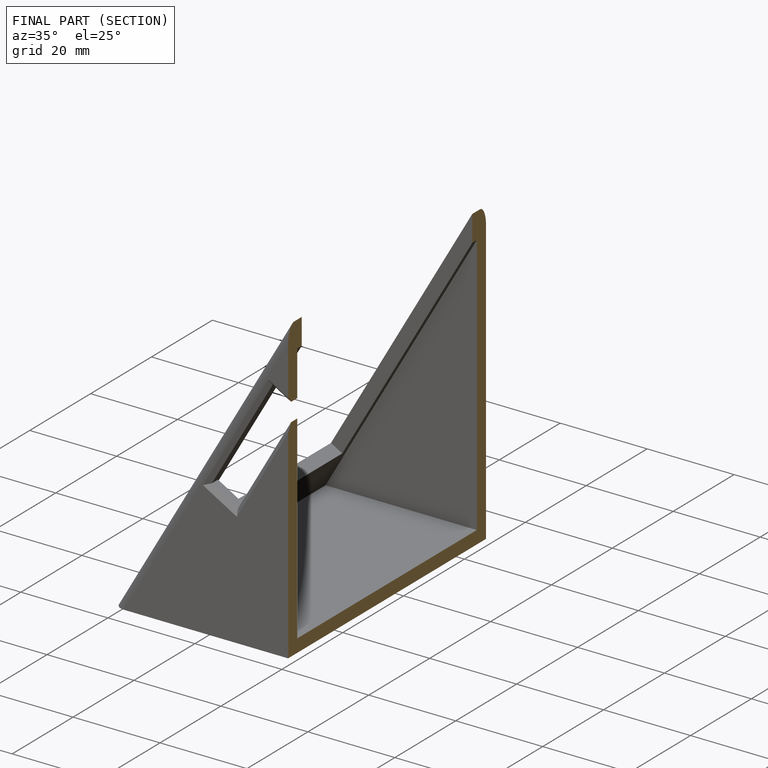
[diagram: finished part — half-section view (interior)]
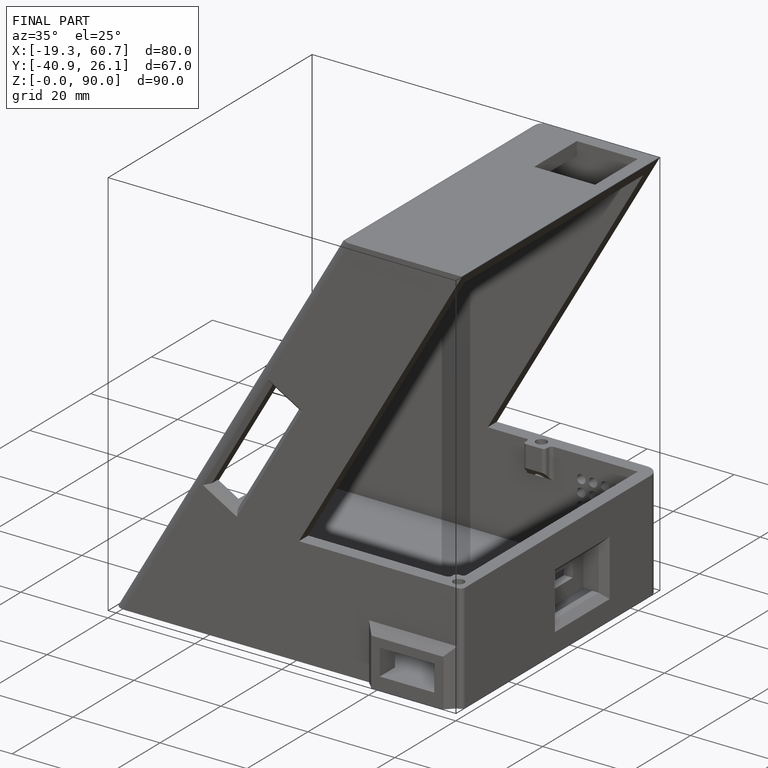
[diagram: finished part — iso view with bounding-box wireframe]
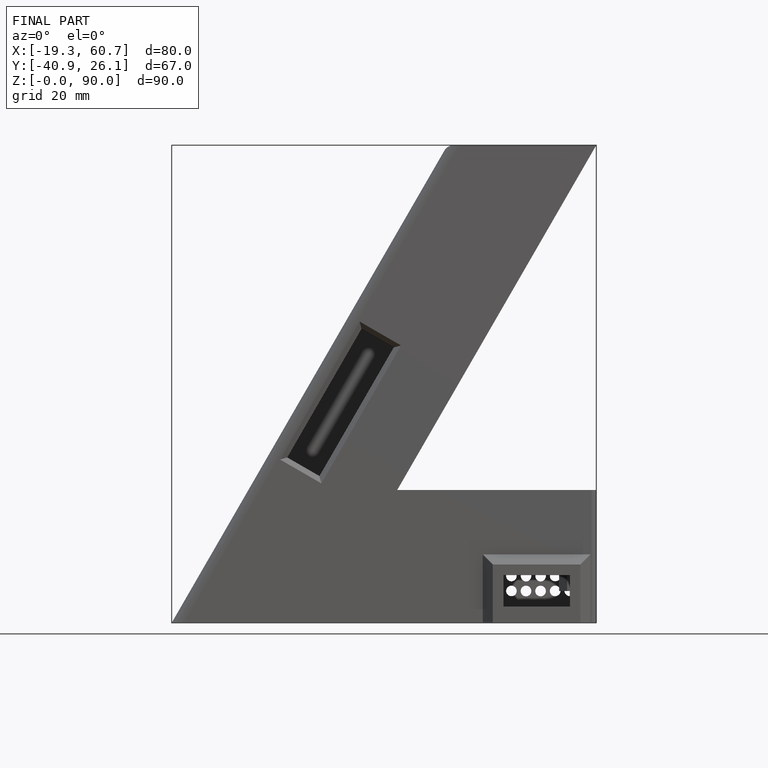
[diagram: finished part — front view with bounding-box wireframe]
